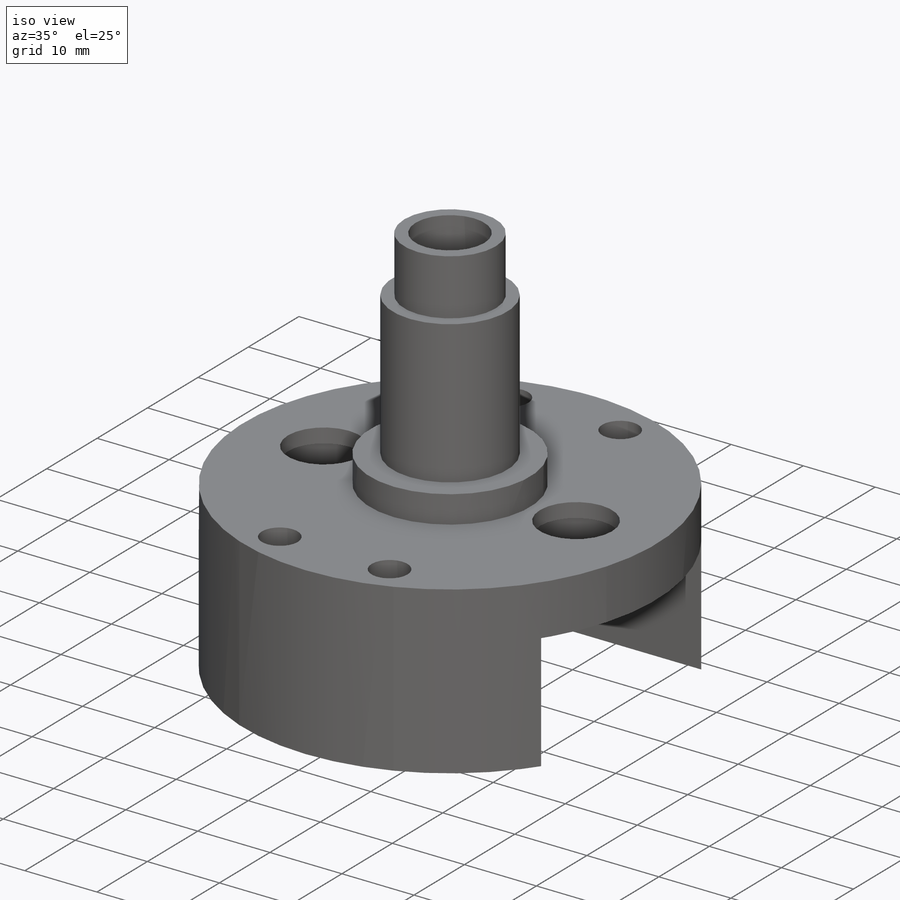
[diagram: iso view]
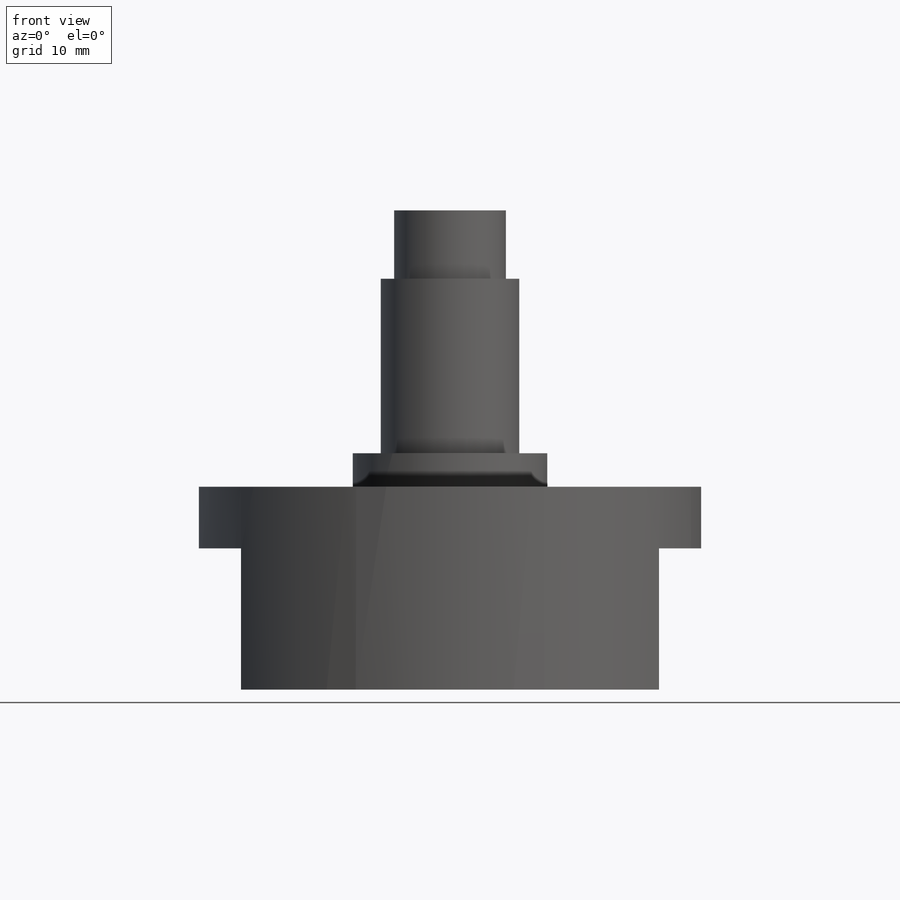
[diagram: front view]
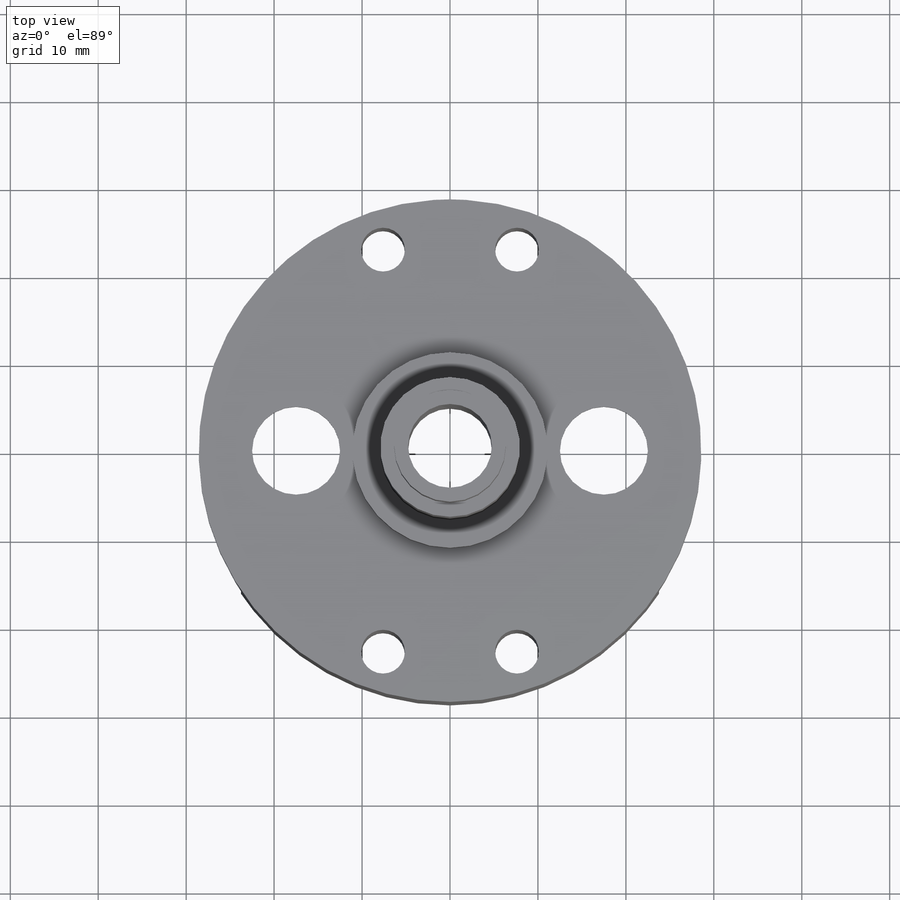
[diagram: top view]
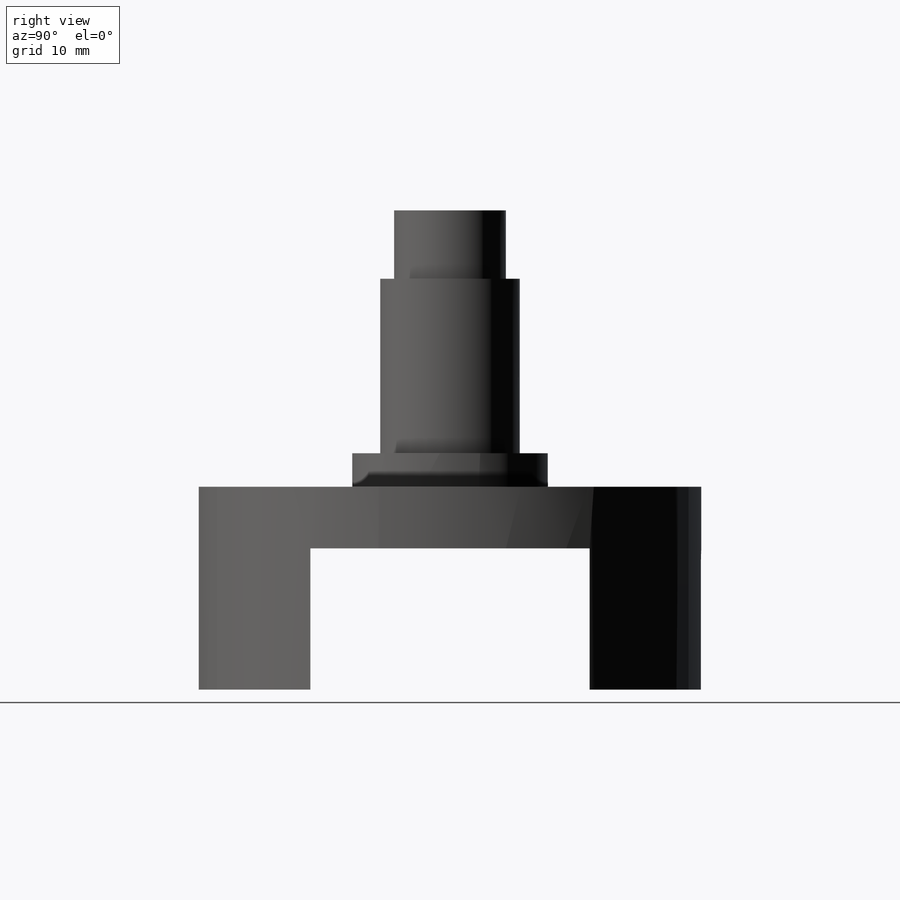
[diagram: right view]
SOLIDWORKS PART (.sldprt)
format: sldprt  version: not decoded by parser v0  size: 303,616 bytes
history: native  units: mm
features: sketch x8, extrude x5, thread x3, plane x3, cut_extrude x3, material x1 (+12 scaffold rows collapsed)
feature tree (35):
  scaffold x12  (default folders/planes/origin — collapsed)
  material  "Material <not specified>"
  sketch  "Sketch1"  dims[D1=22.225mm D2=9.525mm]
  extrude  "Boss-Extrude1"  Depth=3.81mm
  sketch  "Sketch2"  dims[D1=15.875mm]
  extrude  "Boss-Extrude2"  [1 undecoded]
  thread  "Cosmetic Thread2"  Diameter=11.2014mm  [1 undecoded]
  plane  "Plane1"  Offset=11.1125mm
  sketch  "Sketch5"  dims[D1=15.875mm D2=35.0mm D3=10.0mm D4=57.15mm]
  extrude  "Boss-Extrude4"  Depth=7mm
  sketch  "Sketch6"  dims[D1=16.0mm]
  cut_extrude  "Cut-Extrude5"  Depth=5mm
  sketch  "Sketch8"  dims[D1=31.75mm]
  extrude  "Boss-Extrude5"  Depth=16.064mm
  sketch  "Sketch9"  dims[D3=4.9784mm D1=7.62mm D2=22.86mm D4=7.62mm]
  cut_extrude  "Cut-Extrude7"  [1 undecoded]
  sketch  "Sketch11"  dims[D1=3.175mm]
  cut_extrude  "Cut-Extrude9"  [1 undecoded]
  sketch  "Sketch12"  dims[D1=12.7mm D2=11.1125mm]
  extrude  "Boss-Extrude6"  Depth=7.77875mm
  plane  "Plane2"
  thread  "Axis2"  [2 undecoded]
  thread  "Axis3"  [2 undecoded]
  plane  "Plane3"
decode coverage: 14 of 19 modeling features carry decoded parameters
note: 8 parameter values undecoded
summary: no parameter record found for 5 features
note: suppression state not decoded; provenance and decode notes live in map.json
